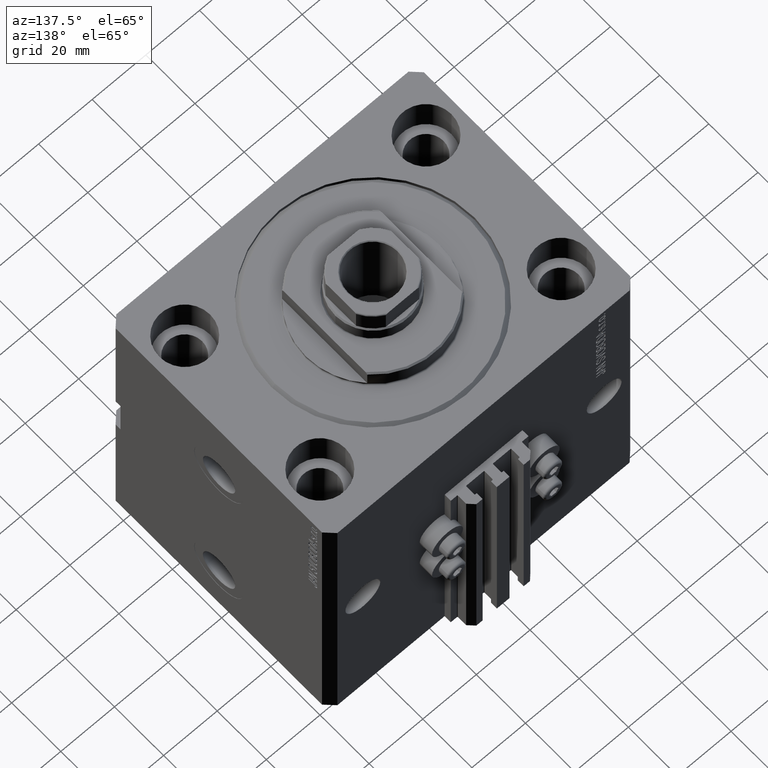
[diagram: clean part render]
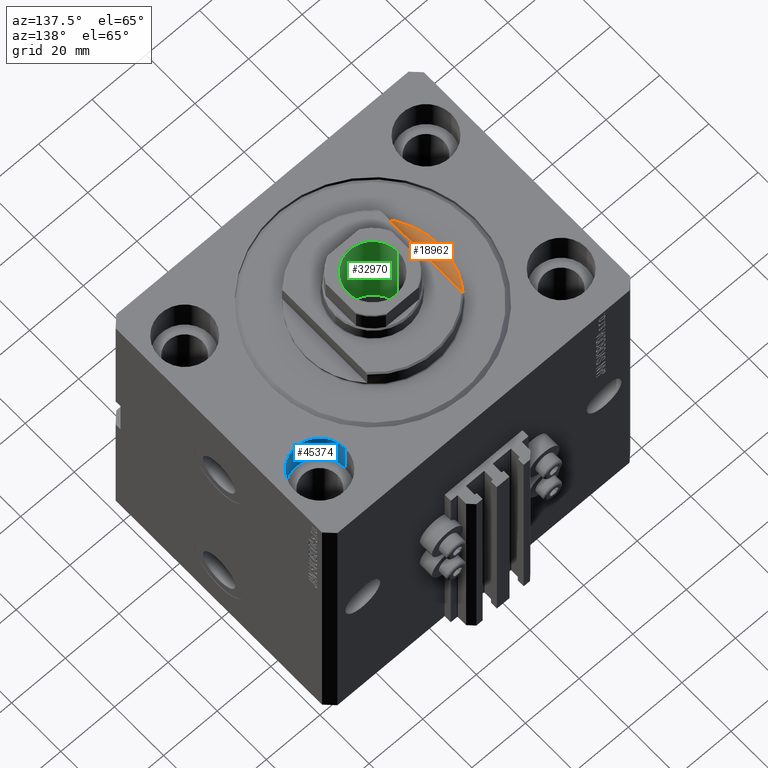
[diagram: same view with three faces highlighted in distinct colors, each labeled with its STEP entity id]
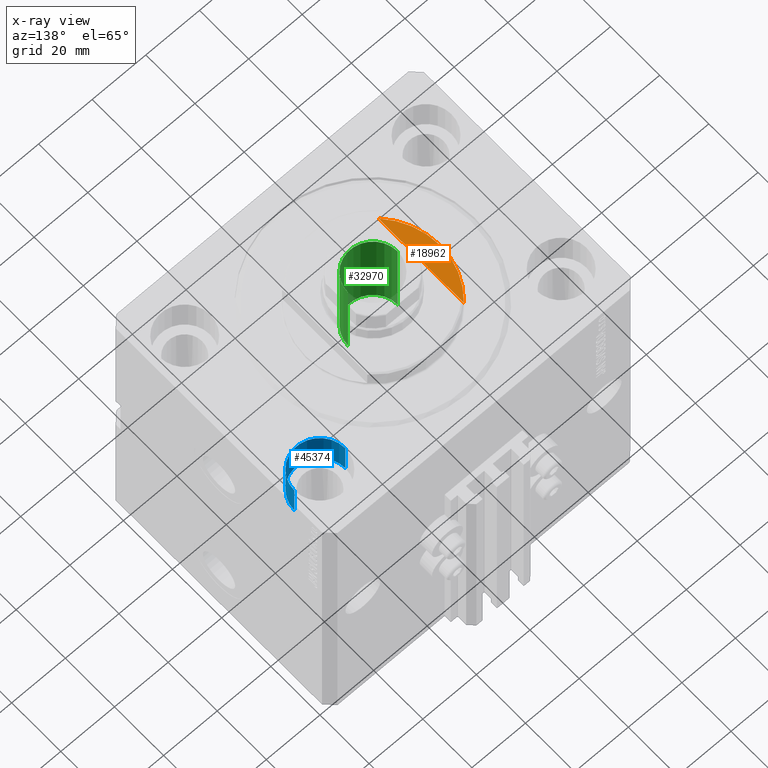
[diagram: x-ray of the same camera — body ghosted, the three highlighted faces saturated]
A machine part, auxiliary view with three faces highlighted in distinct colors.
The next image is the same camera in x-ray (body ghosted, the three faces saturated) — at least one of them is partly hidden behind the body in this view.
Their STEP definitions:

[orange] entity #18962 — the highlighted planar face has unit normal (0, 0, 1).
#2171 = CARTESIAN_POINT ( 'NONE',  ( 0.000000000000000000, 0.000000000000000000, -1.000000000000000000 ) ) ;
#7587 = DIRECTION ( 'NONE',  ( 0.000000000000000000, 0.000000000000000000, -1.000000000000000000 ) ) ;
#8296 = VERTEX_POINT ( 'NONE', #43123 ) ;
#8937 = CARTESIAN_POINT ( 'NONE',  ( 18.00000000000000000, -41.24318125460256113, -1.000000000000000000 ) ) ;
#11088 = AXIS2_PLACEMENT_3D ( 'NONE', #34200, #7587, #15048 ) ;
#13128 = FACE_OUTER_BOUND ( 'NONE', #17127, .T. ) ;
#13398 = EDGE_CURVE ( 'NONE', #8296, #48957, #19825, .T. ) ;
#15048 = DIRECTION ( 'NONE',  ( -1.000000000000000000, 0.000000000000000000, 0.000000000000000000 ) ) ;
#17127 = EDGE_LOOP ( 'NONE', ( #19408, #21903, #35056 ) ) ;
#18275 = AXIS2_PLACEMENT_3D ( 'NONE', #39748, #24072, #35521 ) ;
#18962 = ADVANCED_FACE ( 'NONE', ( #13128 ), #24557, .T. ) ;
#19408 = ORIENTED_EDGE ( 'NONE', *, *, #42828, .T. ) ;
#19825 = CIRCLE ( 'NONE', #11088, 25.00000000000000000 ) ;
#21903 = ORIENTED_EDGE ( 'NONE', *, *, #13398, .T. ) ;
#24072 = DIRECTION ( 'NONE',  ( 0.000000000000000000, 0.000000000000000000, -1.000000000000000000 ) ) ;
#24557 = PLANE ( 'NONE',  #18275 ) ;
#27845 = LINE ( 'NONE', #8937, #35289 ) ;
#29281 = CIRCLE ( 'NONE', #31650, 25.00000000000000000 ) ;
#29530 = DIRECTION ( 'NONE',  ( -1.000000000000000000, 0.000000000000000000, 0.000000000000000000 ) ) ;
#30115 = CARTESIAN_POINT ( 'NONE',  ( 18.00000000000000000, -17.34935157289747920, -1.000000000000000000 ) ) ;
#30161 = VERTEX_POINT ( 'NONE', #45768 ) ;
#31650 = AXIS2_PLACEMENT_3D ( 'NONE', #2171, #48189, #29530 ) ;
#34200 = CARTESIAN_POINT ( 'NONE',  ( 0.000000000000000000, 0.000000000000000000, -1.000000000000000000 ) ) ;
#35056 = ORIENTED_EDGE ( 'NONE', *, *, #45650, .F. ) ;
#35289 = VECTOR ( 'NONE', #46030, 1000.000000000000000 ) ;
#35521 = DIRECTION ( 'NONE',  ( 1.000000000000000000, 0.000000000000000000, 0.000000000000000000 ) ) ;
#39748 = CARTESIAN_POINT ( 'NONE',  ( 0.000000000000000000, 0.000000000000000000, -1.000000000000000000 ) ) ;
#42828 = EDGE_CURVE ( 'NONE', #30161, #8296, #29281, .T. ) ;
#43123 = CARTESIAN_POINT ( 'NONE',  ( 25.00000000000000000, 0.000000000000000000, -1.000000000000000000 ) ) ;
#45650 = EDGE_CURVE ( 'NONE', #30161, #48957, #27845, .T. ) ;
#45768 = CARTESIAN_POINT ( 'NONE',  ( 18.00000000000000000, 17.34935157289747920, -1.000000000000000000 ) ) ;
#46030 = DIRECTION ( 'NONE',  ( 0.000000000000000000, -1.000000000000000000, -0.000000000000000000 ) ) ;
#48189 = DIRECTION ( 'NONE',  ( 0.000000000000000000, 0.000000000000000000, -1.000000000000000000 ) ) ;
#48957 = VERTEX_POINT ( 'NONE', #30115 ) ;

[blue] entity #45374 — the highlighted cylindrical surface (edge-blend (fillet) strip) has radius 9.5 mm, axis along (0, 0, 1).
#882 = EDGE_CURVE ( 'NONE', #16645, #29963, #5161, .T. ) ;
#1655 = CARTESIAN_POINT ( 'NONE',  ( 54.50000000000000000, 27.50000000000001776, 0.000000000000000000 ) ) ;
#1887 = DIRECTION ( 'NONE',  ( 1.000000000000000000, 0.000000000000000000, 0.000000000000000000 ) ) ;
#1949 = ORIENTED_EDGE ( 'NONE', *, *, #882, .T. ) ;
#5161 = LINE ( 'NONE', #23823, #30701 ) ;
#5504 = CYLINDRICAL_SURFACE ( 'NONE', #45757, 9.500000000000001776 ) ;
#6058 = CARTESIAN_POINT ( 'NONE',  ( 45.00000000000000000, 27.50000000000001776, 0.000000000000000000 ) ) ;
#7557 = EDGE_CURVE ( 'NONE', #27829, #48083, #40555, .T. ) ;
#16645 = VERTEX_POINT ( 'NONE', #17899 ) ;
#17899 = CARTESIAN_POINT ( 'NONE',  ( 35.50000000000000000, 27.50000000000001776, -13.00000000000000000 ) ) ;
#20952 = CIRCLE ( 'NONE', #44784, 9.500000000000001776 ) ;
#23823 = CARTESIAN_POINT ( 'NONE',  ( 35.50000000000000000, 27.50000000000001776, -13.00000000000000000 ) ) ;
#24386 = CARTESIAN_POINT ( 'NONE',  ( 35.50000000000000000, 27.50000000000001776, 0.000000000000000000 ) ) ;
#24507 = CARTESIAN_POINT ( 'NONE',  ( 54.50000000000000000, 27.50000000000001776, -13.00000000000000000 ) ) ;
#24539 = VECTOR ( 'NONE', #30080, 1000.000000000000000 ) ;
#27120 = ORIENTED_EDGE ( 'NONE', *, *, #31709, .F. ) ;
#27829 = VERTEX_POINT ( 'NONE', #24507 ) ;
#29787 = CIRCLE ( 'NONE', #47262, 9.500000000000001776 ) ;
#29963 = VERTEX_POINT ( 'NONE', #24386 ) ;
#30080 = DIRECTION ( 'NONE',  ( -0.000000000000000000, -0.000000000000000000, 1.000000000000000000 ) ) ;
#30348 = EDGE_LOOP ( 'NONE', ( #27120, #1949, #42958, #46688 ) ) ;
#30701 = VECTOR ( 'NONE', #42492, 1000.000000000000000 ) ;
#31709 = EDGE_CURVE ( 'NONE', #16645, #27829, #20952, .T. ) ;
#31934 = DIRECTION ( 'NONE',  ( 1.000000000000000000, 0.000000000000000000, 0.000000000000000000 ) ) ;
#32612 = CARTESIAN_POINT ( 'NONE',  ( 45.00000000000000000, 27.50000000000001776, -13.00000000000000000 ) ) ;
#35973 = CARTESIAN_POINT ( 'NONE',  ( 45.00000000000000000, 27.50000000000001776, -13.00000000000000000 ) ) ;
#39410 = DIRECTION ( 'NONE',  ( 0.000000000000000000, 0.000000000000000000, 1.000000000000000000 ) ) ;
#40332 = FACE_OUTER_BOUND ( 'NONE', #30348, .T. ) ;
#40555 = LINE ( 'NONE', #44519, #24539 ) ;
#42492 = DIRECTION ( 'NONE',  ( -0.000000000000000000, -0.000000000000000000, 1.000000000000000000 ) ) ;
#42958 = ORIENTED_EDGE ( 'NONE', *, *, #47368, .T. ) ;
#44519 = CARTESIAN_POINT ( 'NONE',  ( 54.50000000000000000, 27.50000000000001776, -13.00000000000000000 ) ) ;
#44784 = AXIS2_PLACEMENT_3D ( 'NONE', #35973, #47663, #1887 ) ;
#45374 = ADVANCED_FACE ( 'NONE', ( #40332 ), #5504, .F. ) ;
#45757 = AXIS2_PLACEMENT_3D ( 'NONE', #32612, #47540, #47787 ) ;
#46688 = ORIENTED_EDGE ( 'NONE', *, *, #7557, .F. ) ;
#47262 = AXIS2_PLACEMENT_3D ( 'NONE', #6058, #39410, #31934 ) ;
#47368 = EDGE_CURVE ( 'NONE', #29963, #48083, #29787, .T. ) ;
#47540 = DIRECTION ( 'NONE',  ( -0.000000000000000000, -0.000000000000000000, 1.000000000000000000 ) ) ;
#47663 = DIRECTION ( 'NONE',  ( 0.000000000000000000, 0.000000000000000000, 1.000000000000000000 ) ) ;
#47787 = DIRECTION ( 'NONE',  ( 1.000000000000000000, 0.000000000000000000, 0.000000000000000000 ) ) ;
#48083 = VERTEX_POINT ( 'NONE', #1655 ) ;

[green] entity #32970 — the highlighted cylindrical surface (edge-blend (fillet) strip) has radius 9.25 mm, axis along (0, 0, 1).
#2762 = EDGE_CURVE ( 'NONE', #43525, #43403, #29015, .T. ) ;
#7022 = CARTESIAN_POINT ( 'NONE',  ( -9.249999999999996447, 1.132798289211301304E-15, 113.7999999999999972 ) ) ;
#9306 = DIRECTION ( 'NONE',  ( -0.000000000000000000, -0.000000000000000000, 1.000000000000000000 ) ) ;
#11461 = DIRECTION ( 'NONE',  ( -0.000000000000000000, -0.000000000000000000, 1.000000000000000000 ) ) ;
#11503 = DIRECTION ( 'NONE',  ( -0.000000000000000000, -0.000000000000000000, 1.000000000000000000 ) ) ;
#12956 = CARTESIAN_POINT ( 'NONE',  ( 0.000000000000000000, 0.000000000000000000, 113.7999999999999972 ) ) ;
#20309 = CIRCLE ( 'NONE', #30640, 9.249999999999994671 ) ;
#20405 = VECTOR ( 'NONE', #48652, 1000.000000000000000 ) ;
#20558 = ORIENTED_EDGE ( 'NONE', *, *, #28490, .T. ) ;
#20753 = DIRECTION ( 'NONE',  ( 1.000000000000000000, 0.000000000000000000, 0.000000000000000000 ) ) ;
#21152 = DIRECTION ( 'NONE',  ( 0.000000000000000000, 0.000000000000000000, 1.000000000000000000 ) ) ;
#22598 = EDGE_CURVE ( 'NONE', #38619, #44481, #29922, .T. ) ;
#23232 = CIRCLE ( 'NONE', #25613, 9.249999999999996447 ) ;
#25613 = AXIS2_PLACEMENT_3D ( 'NONE', #12956, #21152, #39577 ) ;
#28490 = EDGE_CURVE ( 'NONE', #44481, #43403, #23232, .T. ) ;
#28706 = CARTESIAN_POINT ( 'NONE',  ( 0.000000000000000000, 0.000000000000000000, 79.10000000000000853 ) ) ;
#29015 = LINE ( 'NONE', #40722, #20405 ) ;
#29922 = LINE ( 'NONE', #33642, #45267 ) ;
#30640 = AXIS2_PLACEMENT_3D ( 'NONE', #28706, #9306, #20753 ) ;
#31350 = FACE_OUTER_BOUND ( 'NONE', #39819, .T. ) ;
#32970 = ADVANCED_FACE ( 'NONE', ( #31350 ), #34842, .F. ) ;
#33642 = CARTESIAN_POINT ( 'NONE',  ( -9.249999999999996447, 1.132798289211301304E-15, 114.1000000000000085 ) ) ;
#34355 = DIRECTION ( 'NONE',  ( 1.000000000000000000, 0.000000000000000000, 0.000000000000000000 ) ) ;
#34842 = CYLINDRICAL_SURFACE ( 'NONE', #40058, 9.249999999999996447 ) ;
#35162 = CARTESIAN_POINT ( 'NONE',  ( 9.249999999999996447, 0.000000000000000000, 113.7999999999999972 ) ) ;
#38219 = ORIENTED_EDGE ( 'NONE', *, *, #2762, .F. ) ;
#38589 = CARTESIAN_POINT ( 'NONE',  ( 0.000000000000000000, 0.000000000000000000, 114.1000000000000085 ) ) ;
#38619 = VERTEX_POINT ( 'NONE', #38884 ) ;
#38884 = CARTESIAN_POINT ( 'NONE',  ( -9.249999999999994671, 1.132798289211300909E-15, 79.10000000000000853 ) ) ;
#39577 = DIRECTION ( 'NONE',  ( 1.000000000000000000, 0.000000000000000000, 0.000000000000000000 ) ) ;
#39819 = EDGE_LOOP ( 'NONE', ( #45087, #42213, #20558, #38219 ) ) ;
#40058 = AXIS2_PLACEMENT_3D ( 'NONE', #38589, #11461, #34355 ) ;
#40722 = CARTESIAN_POINT ( 'NONE',  ( 9.249999999999996447, 0.000000000000000000, 114.1000000000000085 ) ) ;
#42213 = ORIENTED_EDGE ( 'NONE', *, *, #22598, .T. ) ;
#43403 = VERTEX_POINT ( 'NONE', #35162 ) ;
#43525 = VERTEX_POINT ( 'NONE', #44096 ) ;
#44096 = CARTESIAN_POINT ( 'NONE',  ( 9.249999999999994671, 0.000000000000000000, 79.10000000000000853 ) ) ;
#44481 = VERTEX_POINT ( 'NONE', #7022 ) ;
#45087 = ORIENTED_EDGE ( 'NONE', *, *, #48439, .F. ) ;
#45267 = VECTOR ( 'NONE', #11503, 1000.000000000000000 ) ;
#48439 = EDGE_CURVE ( 'NONE', #38619, #43525, #20309, .T. ) ;
#48652 = DIRECTION ( 'NONE',  ( -0.000000000000000000, -0.000000000000000000, 1.000000000000000000 ) ) ;